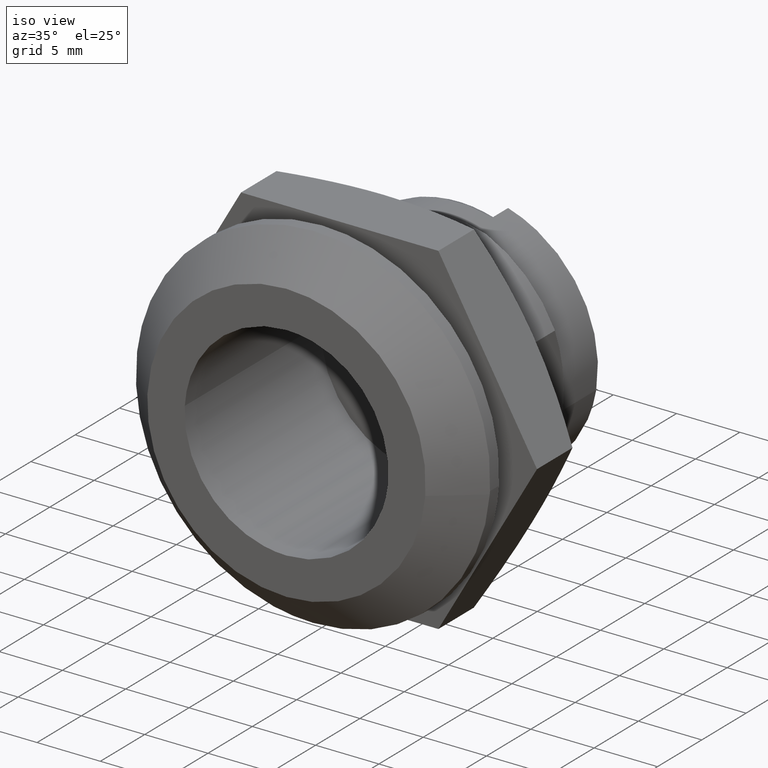
[diagram: clean part render]
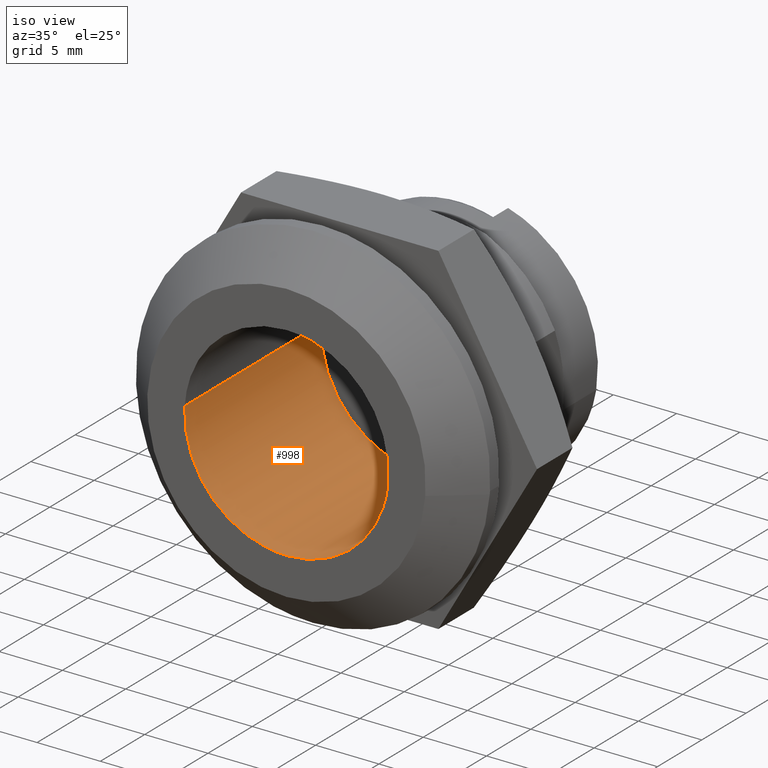
[diagram: same view with one face highlighted and labeled with its STEP entity id]
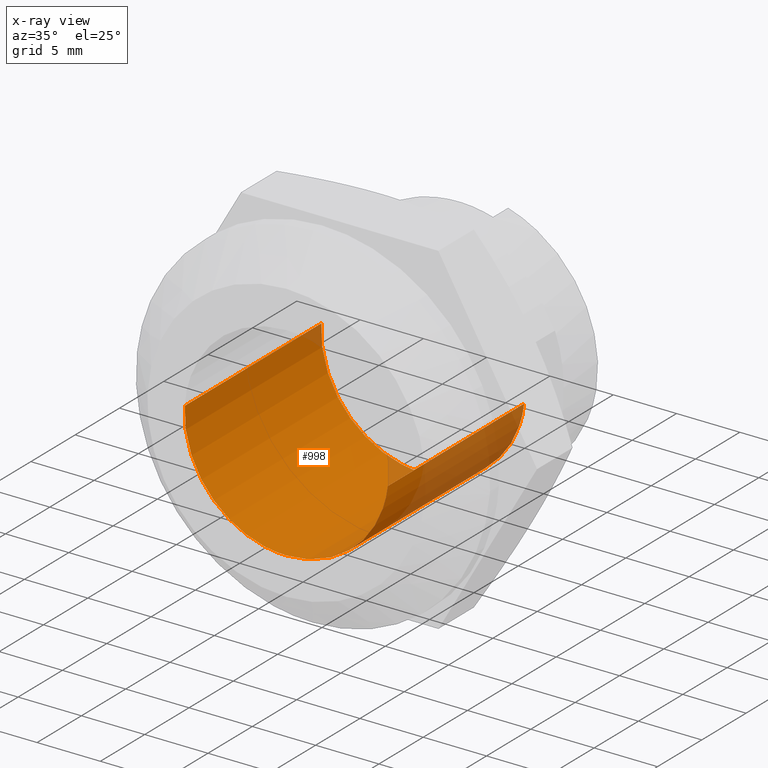
[diagram: x-ray of the same camera — body ghosted, the highlighted face saturated]
A machine part, iso view. The second image highlights one B-rep face of the part: STEP entity #998.
The next image is the same camera in x-ray: the body ghosted, the highlighted face saturated — about 13% of this face is hidden behind the body in this view.
In plain terms, the highlighted face is a freeform B-spline surface patch.
Its self-contained STEP definition (entity closure, byte-faithful):
#835=CARTESIAN_POINT('',(11.399999810010140,-7.993728227128994,-0.950165873209402));
#836=VERTEX_POINT('',#835);
#854=CARTESIAN_POINT('',(-4.000000189989805,-7.993728213156628,-0.950165990759871));
#855=VERTEX_POINT('',#854);
#856=CARTESIAN_POINT('',(11.399999810010140,-7.993728227128994,-0.950165873209402));
#857=CARTESIAN_POINT('',(-4.000000189989805,-7.993728213156628,-0.950165990759871));
#858=QUASI_UNIFORM_CURVE('',1,(#856,#857),.UNSPECIFIED.,.F.,.U.);
#859=EDGE_CURVE('',#836,#855,#858,.T.);
#878=CARTESIAN_POINT('',(-4.000000189989807,8.034985525274804,0.491440499482453));
#879=VERTEX_POINT('',#878);
#893=CARTESIAN_POINT('',(11.399999810010160,8.034985525473754,0.491440496229657));
#894=VERTEX_POINT('',#893);
#895=CARTESIAN_POINT('',(11.399999810010160,8.034985525473754,0.491440496229657));
#896=CARTESIAN_POINT('',(-4.000000189989807,8.034985525274804,0.491440499482453));
#897=QUASI_UNIFORM_CURVE('',1,(#895,#896),.UNSPECIFIED.,.F.,.U.);
#898=EDGE_CURVE('',#894,#879,#897,.T.);
#916=CARTESIAN_POINT('',(11.784999810010159,8.034985508937339,0.491440766597781));
#917=CARTESIAN_POINT('',(11.784999810010165,8.526426275535121,-7.543544742339558));
#918=CARTESIAN_POINT('',(11.784999810010159,0.491440766597781,-8.034985508937339));
#919=CARTESIAN_POINT('',(11.784999810010165,-7.096425438320086,-8.499079287381429));
#920=CARTESIAN_POINT('',(11.784999810010161,-7.993727066909155,-0.950175634117824));
#921=CARTESIAN_POINT('',(-4.394625189989805,8.034985508937339,0.491440766597781));
#922=CARTESIAN_POINT('',(-4.394625189989805,8.526426275535121,-7.543544742339558));
#923=CARTESIAN_POINT('',(-4.394625189989805,0.491440766597781,-8.034985508937339));
#924=CARTESIAN_POINT('',(-4.394625189989805,-7.096425438320086,-8.499079287381429));
#925=CARTESIAN_POINT('',(-4.394625189989805,-7.993727066909155,-0.950175634117824));
#933=(BOUNDED_SURFACE()B_SPLINE_SURFACE(2,1,((#916,#921),(#917,#922),(#918,#923),(#919,#924),(#920,#925)),.UNSPECIFIED.,.F.,.F.,.U.)B_SPLINE_SURFACE_WITH_KNOTS((3,2,3),(2,2),(0.0,13.337677341919310,26.141847590161831),(0.0,16.179624999999970),.UNSPECIFIED.)GEOMETRIC_REPRESENTATION_ITEM()RATIONAL_B_SPLINE_SURFACE(((1.0,1.0),(0.707106781186548,0.707106781186548),(1.0,1.0),(0.718822509939086,0.718822509939086),(0.977505800795127,0.977505800795127)))REPRESENTATION_ITEM('')SURFACE());
#934=CARTESIAN_POINT('',(11.399999810010160,0.0,-8.050000382354480));
#935=VERTEX_POINT('',#934);
#936=CARTESIAN_POINT('',(11.399999810010160,0.0,-8.050000382354480));
#937=CARTESIAN_POINT('',(11.399999810010161,-7.149814065388891,-8.050000382354480));
#938=CARTESIAN_POINT('',(11.399999810010140,-7.993728227128994,-0.950165873209402));
#946=(BOUNDED_CURVE()B_SPLINE_CURVE(2,(#936,#937,#938),.UNSPECIFIED.,.F.,.U.)B_SPLINE_CURVE_WITH_KNOTS((3,3),(0.0,0.229562679880628),.UNSPECIFIED.)CURVE()GEOMETRIC_REPRESENTATION_ITEM()RATIONAL_B_SPLINE_CURVE((1.0,0.731050591081283,0.956027158672099))REPRESENTATION_ITEM(''));
#947=EDGE_CURVE('',#935,#836,#946,.T.);
#948=ORIENTED_EDGE('',*,*,#947,.F.);
#949=CARTESIAN_POINT('',(11.399999810010160,8.034985525473754,0.491440496229657));
#950=CARTESIAN_POINT('',(11.399999810010161,8.050000382354480,0.245949485109418));
#951=CARTESIAN_POINT('',(11.399999810010160,8.050000382354480,0.0));
#952=CARTESIAN_POINT('',(11.399999810010163,8.050000382354481,-8.050000382354481));
#953=CARTESIAN_POINT('',(11.399999810010160,0.0,-8.050000382354480));
#961=(BOUNDED_CURVE()B_SPLINE_CURVE(2,(#949,#950,#951,#952,#953),.UNSPECIFIED.,.F.,.U.)B_SPLINE_CURVE_WITH_KNOTS((3,2,3),(0.739332973853975,0.750000000000000,1.0),.UNSPECIFIED.)CURVE()GEOMETRIC_REPRESENTATION_ITEM()RATIONAL_B_SPLINE_CURVE((0.976072066559944,0.987502801507694,1.0,0.707106781186548,1.0))REPRESENTATION_ITEM(''));
#962=EDGE_CURVE('',#894,#935,#961,.T.);
#963=ORIENTED_EDGE('',*,*,#962,.F.);
#964=ORIENTED_EDGE('',*,*,#898,.T.);
#965=CARTESIAN_POINT('',(-4.000000189989805,0.0,-8.050000382354480));
#966=VERTEX_POINT('',#965);
#967=CARTESIAN_POINT('',(-4.000000189989806,8.034985525274804,0.491440499482453));
#968=CARTESIAN_POINT('',(-4.000000189989805,8.050000382354480,0.245949488371334));
#969=CARTESIAN_POINT('',(-4.000000189989805,8.050000382354480,0.0));
#970=CARTESIAN_POINT('',(-4.000000189989805,8.050000382354481,-8.050000382354481));
#971=CARTESIAN_POINT('',(-4.000000189989805,0.0,-8.050000382354480));
#979=(BOUNDED_CURVE()B_SPLINE_CURVE(2,(#967,#968,#969,#970,#971),.UNSPECIFIED.,.F.,.U.)B_SPLINE_CURVE_WITH_KNOTS((3,2,3),(0.739332973714271,0.750000000000000,1.0),.UNSPECIFIED.)CURVE()GEOMETRIC_REPRESENTATION_ITEM()RATIONAL_B_SPLINE_CURVE((0.976072066260531,0.987502801344020,1.0,0.707106781186548,1.0))REPRESENTATION_ITEM(''));
#980=EDGE_CURVE('',#879,#966,#979,.T.);
#981=ORIENTED_EDGE('',*,*,#980,.T.);
#982=CARTESIAN_POINT('',(-4.000000189989805,0.0,-8.050000382354480));
#983=CARTESIAN_POINT('',(-4.000000189989804,-7.149813959508342,-8.050000382354480));
#984=CARTESIAN_POINT('',(-4.000000189989805,-7.993728213156628,-0.950165990759871));
#992=(BOUNDED_CURVE()B_SPLINE_CURVE(2,(#982,#983,#984),.UNSPECIFIED.,.F.,.U.)B_SPLINE_CURVE_WITH_KNOTS((3,3),(0.0,0.229562677395378),.UNSPECIFIED.)CURVE()GEOMETRIC_REPRESENTATION_ITEM()RATIONAL_B_SPLINE_CURVE((1.0,0.731050593992935,0.956027153800897))REPRESENTATION_ITEM(''));
#993=EDGE_CURVE('',#966,#855,#992,.T.);
#994=ORIENTED_EDGE('',*,*,#993,.T.);
#995=ORIENTED_EDGE('',*,*,#859,.F.);
#996=EDGE_LOOP('',(#948,#963,#964,#981,#994,#995));
#997=FACE_OUTER_BOUND('',#996,.T.);
#998=ADVANCED_FACE('',(#997),#933,.F.);